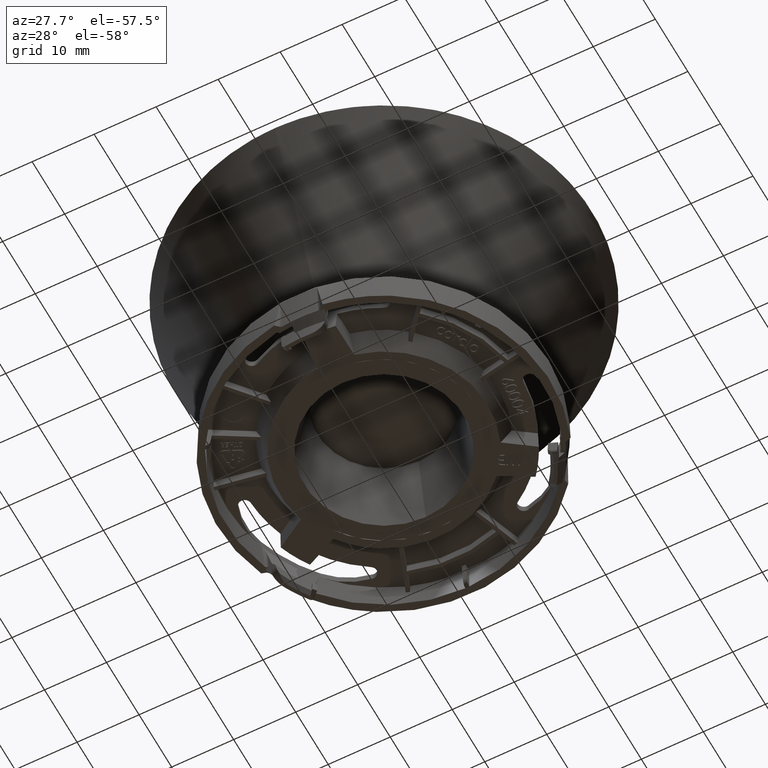
[diagram: clean part render]
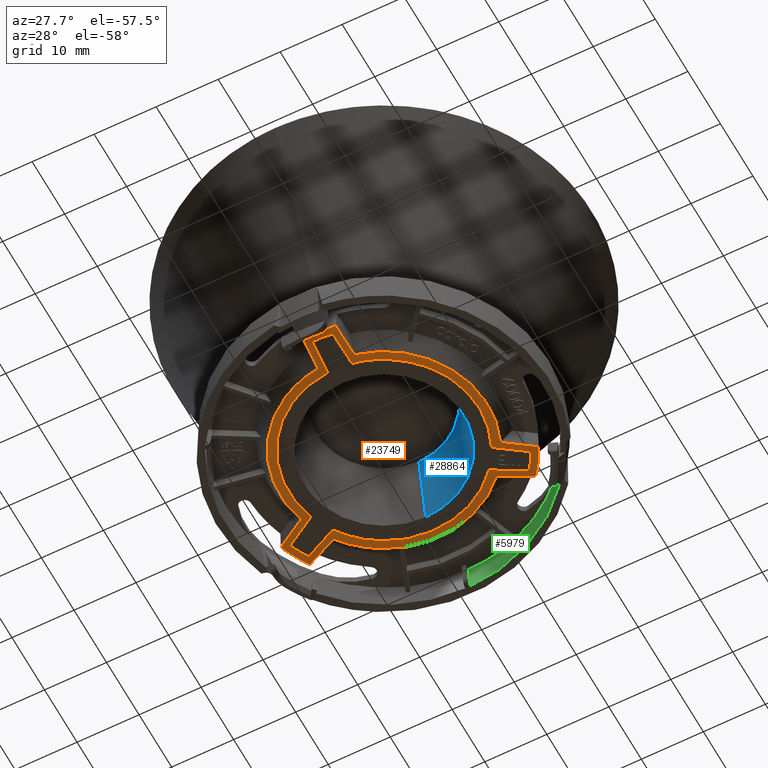
[diagram: same view with three faces highlighted in distinct colors, each labeled with its STEP entity id]
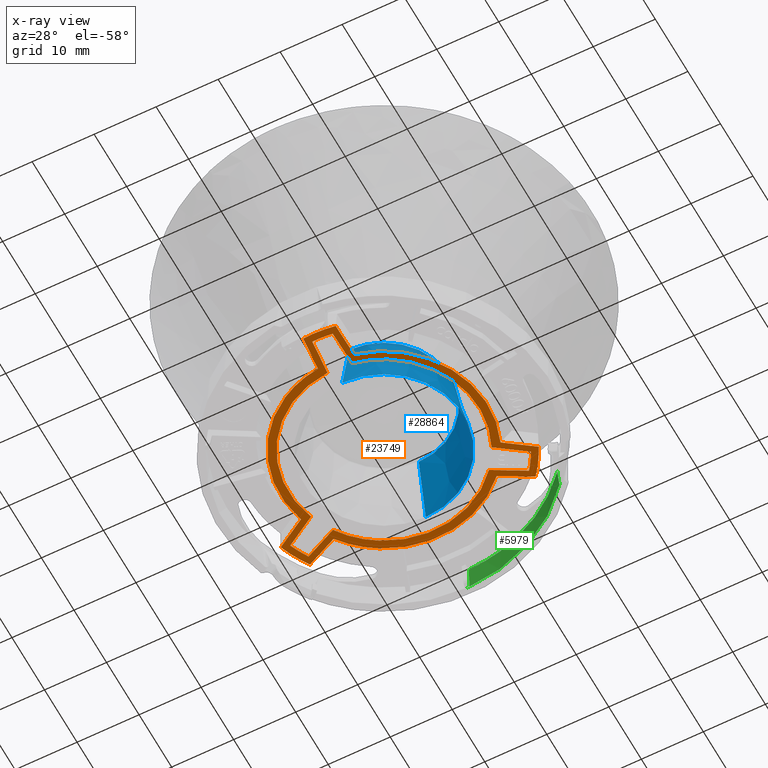
[diagram: x-ray of the same camera — body ghosted, the three highlighted faces saturated]
A machine part, auxiliary view with three faces highlighted in distinct colors.
The next image is the same camera in x-ray (body ghosted, the three faces saturated) — at least one of them is partly hidden behind the body in this view.
Their STEP definitions:

[orange] entity #23749 — the highlighted planar face has unit normal (0, 0, -1).
#101 = AXIS2_PLACEMENT_3D ( 'NONE', #8389, #24213, #10673 ) ;
#285 = DIRECTION ( 'NONE',  ( -0.4999999999999919500, -0.8660254037844432600, 0.0000000000000000000 ) ) ;
#389 = CARTESIAN_POINT ( 'NONE',  ( 0.0000000000000000000, 0.0000000000000000000, 0.0000000000000000000 ) ) ;
#962 = EDGE_LOOP ( 'NONE', ( #8172, #18184, #12116, #10768, #2696, #27487, #12266, #27324, #11338, #5139, #1136, #14303, #15873, #27928 ) ) ;
#1069 = CARTESIAN_POINT ( 'NONE',  ( 0.0000000000000000000, 0.0000000000000000000, 0.0000000000000000000 ) ) ;
#1136 = ORIENTED_EDGE ( 'NONE', *, *, #1169, .T. ) ;
#1169 = EDGE_CURVE ( 'NONE', #5075, #1713, #19078, .T. ) ;
#1219 = PLANE ( 'NONE',  #25530 ) ;
#1319 = DIRECTION ( 'NONE',  ( 0.0000000000000000000, 0.0000000000000000000, 1.000000000000000000 ) ) ;
#1523 = EDGE_CURVE ( 'NONE', #15664, #18676, #6683, .T. ) ;
#1713 = VERTEX_POINT ( 'NONE', #22175 ) ;
#1734 = CIRCLE ( 'NONE', #15433, 15.36204914310654200 ) ;
#1869 = CARTESIAN_POINT ( 'NONE',  ( -7.681024571553148700, -13.30392481211530700, 0.0000000000000000000 ) ) ;
#1922 = AXIS2_PLACEMENT_3D ( 'NONE', #389, #16187, #2660 ) ;
#1944 = DIRECTION ( 'NONE',  ( 0.0000000000000000000, 0.0000000000000000000, -1.000000000000000000 ) ) ;
#1988 = DIRECTION ( 'NONE',  ( 0.4999999999999919500, 0.8660254037844432600, 0.0000000000000000000 ) ) ;
#2397 = CARTESIAN_POINT ( 'NONE',  ( 5.507376653750486100E-016, 1.482765011611677100E-016, 0.0000000000000000000 ) ) ;
#2505 = EDGE_CURVE ( 'NONE', #24407, #9333, #17984, .T. ) ;
#2657 = CIRCLE ( 'NONE', #19850, 21.00000000000008500 ) ;
#2660 = DIRECTION ( 'NONE',  ( 0.5000000000000040000, -0.8660254037844362700, 0.0000000000000000000 ) ) ;
#2696 = ORIENTED_EDGE ( 'NONE', *, *, #4250, .F. ) ;
#2710 = CIRCLE ( 'NONE', #24719, 22.11523853932277100 ) ;
#2775 = ORIENTED_EDGE ( 'NONE', *, *, #23231, .F. ) ;
#2782 = CARTESIAN_POINT ( 'NONE',  ( 1.095929048303754300, -14.95991107998587000, 0.0000000000000000000 ) ) ;
#2815 = EDGE_CURVE ( 'NONE', #28847, #23406, #27834, .T. ) ;
#2953 = CARTESIAN_POINT ( 'NONE',  ( 8.346772599426570200, -14.45703422143041200, 0.0000000000000000000 ) ) ;
#3069 = CIRCLE ( 'NONE', #20568, 22.11523853932277500 ) ;
#3099 = VECTOR ( 'NONE', #9102, 1000.000000000000000 ) ;
#3101 = CARTESIAN_POINT ( 'NONE',  ( -3.653220111792240000, -21.81141349078376700, 0.0000000000000000000 ) ) ;
#3299 = ORIENTED_EDGE ( 'NONE', *, *, #22386, .F. ) ;
#3321 = CARTESIAN_POINT ( 'NONE',  ( -20.14996507813546200, 10.01143882516020700, 0.0000000000000000000 ) ) ;
#3352 = EDGE_CURVE ( 'NONE', #10670, #21821, #15881, .T. ) ;
#3353 = DIRECTION ( 'NONE',  ( 1.000000000000000000, 0.0000000000000000000, 0.0000000000000000000 ) ) ;
#3475 = VECTOR ( 'NONE', #11879, 1000.000000000000200 ) ;
#3611 = DIRECTION ( 'NONE',  ( 0.8161375900801616200, -0.5778576243835033000, 0.0000000000000000000 ) ) ;
#3937 = LINE ( 'NONE', #28623, #15904 ) ;
#4079 = DIRECTION ( 'NONE',  ( 0.0000000000000000000, 0.0000000000000000000, 1.000000000000000000 ) ) ;
#4145 = AXIS2_PLACEMENT_3D ( 'NONE', #1069, #16851, #3353 ) ;
#4250 = EDGE_CURVE ( 'NONE', #6316, #22095, #5975, .T. ) ;
#4431 = CARTESIAN_POINT ( 'NONE',  ( 19.37401939499519400, 8.102306614930936800, 0.0000000000000000000 ) ) ;
#4489 = CARTESIAN_POINT ( 'NONE',  ( -17.06262811956937500, 14.06948816782003100, 0.0000000000000000000 ) ) ;
#4508 = AXIS2_PLACEMENT_3D ( 'NONE', #29020, #15502, #1988 ) ;
#4666 = DIRECTION ( 'NONE',  ( -0.5000000000000040000, 0.8660254037844363800, 0.0000000000000000000 ) ) ;
#4734 = CARTESIAN_POINT ( 'NONE',  ( 1.440801604770245000, -22.06825472000082700, 0.0000000000000000000 ) ) ;
#4830 = EDGE_CURVE ( 'NONE', #6292, #28456, #15478, .T. ) ;
#4983 = AXIS2_PLACEMENT_3D ( 'NONE', #10184, #25975, #12452 ) ;
#5038 = VECTOR ( 'NONE', #25457, 1000.000000000000100 ) ;
#5075 = VERTEX_POINT ( 'NONE', #1869 ) ;
#5139 = ORIENTED_EDGE ( 'NONE', *, *, #7469, .T. ) ;
#5322 = VERTEX_POINT ( 'NONE', #7065 ) ;
#5429 = CARTESIAN_POINT ( 'NONE',  ( -15.33306266456630800, 6.600881807049035800, 0.0000000000000000000 ) ) ;
#5809 = VECTOR ( 'NONE', #3611, 1000.000000000000000 ) ;
#5914 = VERTEX_POINT ( 'NONE', #16524 ) ;
#5975 = LINE ( 'NONE', #17121, #11257 ) ;
#6292 = VERTEX_POINT ( 'NONE', #8930 ) ;
#6316 = VERTEX_POINT ( 'NONE', #24844 ) ;
#6349 = EDGE_CURVE ( 'NONE', #28847, #16327, #27089, .T. ) ;
#6683 = LINE ( 'NONE', #7578, #18705 ) ;
#6825 = CARTESIAN_POINT ( 'NONE',  ( -17.40478764589210300, 14.25915029030150900, 0.0000000000000000000 ) ) ;
#6927 = CARTESIAN_POINT ( 'NONE',  ( -2.670206339716801200, -20.82954627694371300, 0.0000000000000000000 ) ) ;
#7065 = CARTESIAN_POINT ( 'NONE',  ( -2.770037147126327900, -15.11024315088148000, 0.0000000000000000000 ) ) ;
#7157 = VERTEX_POINT ( 'NONE', #5429 ) ;
#7344 = CARTESIAN_POINT ( 'NONE',  ( 15.96254639671545000, 4.885853440173455000, 0.0000000000000000000 ) ) ;
#7469 = EDGE_CURVE ( 'NONE', #5322, #5075, #1734, .T. ) ;
#7554 = CARTESIAN_POINT ( 'NONE',  ( 18.39126840232138000, 12.28189815154491900, 0.0000000000000000000 ) ) ;
#7578 = CARTESIAN_POINT ( 'NONE',  ( 12.40769850947214600, 8.429057936569348500, 0.0000000000000000000 ) ) ;
#7680 = CARTESIAN_POINT ( 'NONE',  ( 21.05118021072745200, 7.943413103665265300, 0.0000000000000000000 ) ) ;
#7874 = CIRCLE ( 'NONE', #4145, 21.00000000000008200 ) ;
#7962 = EDGE_CURVE ( 'NONE', #28075, #22073, #15488, .T. ) ;
#8111 = ORIENTED_EDGE ( 'NONE', *, *, #10152, .T. ) ;
#8161 = CIRCLE ( 'NONE', #27399, 22.11523853932277100 ) ;
#8172 = ORIENTED_EDGE ( 'NONE', *, *, #2815, .T. ) ;
#8191 = DIRECTION ( 'NONE',  ( 0.8161375900801618500, -0.5778576243835030800, 0.0000000000000000000 ) ) ;
#8389 = CARTESIAN_POINT ( 'NONE',  ( 0.0000000000000000000, 0.0000000000000000000, 0.0000000000000000000 ) ) ;
#8445 = CARTESIAN_POINT ( 'NONE',  ( 0.0000000000000000000, 0.0000000000000000000, 0.0000000000000000000 ) ) ;
#8630 = EDGE_CURVE ( 'NONE', #18613, #28075, #22871, .T. ) ;
#8650 = CARTESIAN_POINT ( 'NONE',  ( 7.681024571553146900, 13.30392481211530500, 0.0000000000000000000 ) ) ;
#8821 = EDGE_CURVE ( 'NONE', #5322, #9196, #28178, .T. ) ;
#8848 = CARTESIAN_POINT ( 'NONE',  ( 13.38306266456619800, 9.978380881808558200, 0.0000000000000000000 ) ) ;
#8890 = VERTEX_POINT ( 'NONE', #9900 ) ;
#8930 = CARTESIAN_POINT ( 'NONE',  ( 0.5362421804898369600, -20.99315231983674600, 0.0000000000000000000 ) ) ;
#9102 = DIRECTION ( 'NONE',  ( -0.8746197071393970700, 0.4848096202463347800, 0.0000000000000000000 ) ) ;
#9149 = VECTOR ( 'NONE', #26196, 999.9999999999998900 ) ;
#9173 = EDGE_CURVE ( 'NONE', #18613, #24861, #21099, .T. ) ;
#9196 = VERTEX_POINT ( 'NONE', #6927 ) ;
#9308 = CARTESIAN_POINT ( 'NONE',  ( 1.470585316780064700, 2.653006139672208400, 0.0000000000000000000 ) ) ;
#9333 = VERTEX_POINT ( 'NONE', #3101 ) ;
#9471 = DIRECTION ( 'NONE',  ( 0.0000000000000000000, 0.0000000000000000000, -1.000000000000000000 ) ) ;
#9527 = EDGE_CURVE ( 'NONE', #23406, #18676, #16852, .T. ) ;
#9900 = CARTESIAN_POINT ( 'NONE',  ( -18.44872430473985500, 10.03217680903324400, 0.0000000000000000000 ) ) ;
#10099 = ORIENTED_EDGE ( 'NONE', *, *, #20440, .T. ) ;
#10152 = EDGE_CURVE ( 'NONE', #5914, #25865, #3069, .T. ) ;
#10184 = CARTESIAN_POINT ( 'NONE',  ( 0.0000000000000000000, 0.0000000000000000000, 0.0000000000000000000 ) ) ;
#10670 = VERTEX_POINT ( 'NONE', #2953 ) ;
#10673 = DIRECTION ( 'NONE',  ( 0.5000000000000041100, -0.8660254037844363800, 0.0000000000000000000 ) ) ;
#10702 = EDGE_CURVE ( 'NONE', #27054, #5914, #13968, .T. ) ;
#10722 = DIRECTION ( 'NONE',  ( 0.4999999999999919000, 0.8660254037844432600, 0.0000000000000000000 ) ) ;
#10768 = ORIENTED_EDGE ( 'NONE', *, *, #11584, .F. ) ;
#10997 = CARTESIAN_POINT ( 'NONE',  ( 0.0000000000000000000, 0.0000000000000000000, 0.0000000000000000000 ) ) ;
#11257 = VECTOR ( 'NONE', #17226, 1000.000000000000000 ) ;
#11338 = ORIENTED_EDGE ( 'NONE', *, *, #8821, .F. ) ;
#11469 = ORIENTED_EDGE ( 'NONE', *, *, #7962, .F. ) ;
#11584 = EDGE_CURVE ( 'NONE', #22095, #15664, #2657, .T. ) ;
#11697 = DIRECTION ( 'NONE',  ( 0.0000000000000000000, 0.0000000000000000000, -1.000000000000000000 ) ) ;
#11780 = CARTESIAN_POINT ( 'NONE',  ( -3.032863371742252400, -0.05293882707215394300, 0.0000000000000000000 ) ) ;
#11879 = DIRECTION ( 'NONE',  ( 0.01745240643727692700, -0.9998476951563912700, 0.0000000000000000000 ) ) ;
#11949 = VECTOR ( 'NONE', #15050, 1000.000000000000100 ) ;
#12116 = ORIENTED_EDGE ( 'NONE', *, *, #1523, .F. ) ;
#12164 = EDGE_CURVE ( 'NONE', #16327, #8890, #27700, .T. ) ;
#12266 = ORIENTED_EDGE ( 'NONE', *, *, #4830, .F. ) ;
#12354 = CIRCLE ( 'NONE', #1922, 15.36204914310654600 ) ;
#12452 = DIRECTION ( 'NONE',  ( 0.4999999999999919500, 0.8660254037844432600, 0.0000000000000000000 ) ) ;
#12562 = ORIENTED_EDGE ( 'NONE', *, *, #10702, .T. ) ;
#12696 = CARTESIAN_POINT ( 'NONE',  ( 0.0000000000000000000, 0.0000000000000000000, 0.0000000000000000000 ) ) ;
#12726 = DIRECTION ( 'NONE',  ( 0.0000000000000000000, 0.0000000000000000000, -1.000000000000000000 ) ) ;
#12780 = CARTESIAN_POINT ( 'NONE',  ( -3.646392564835516200, -22.20256339396683700, 0.0000000000000000000 ) ) ;
#13262 = DIRECTION ( 'NONE',  ( 0.4999999999999919000, 0.8660254037844432600, 0.0000000000000000000 ) ) ;
#13427 = ORIENTED_EDGE ( 'NONE', *, *, #9173, .T. ) ;
#13490 = CARTESIAN_POINT ( 'NONE',  ( -1.469576158976827500E-016, -5.510910596163085600E-016, 0.0000000000000000000 ) ) ;
#13803 = DIRECTION ( 'NONE',  ( 0.0000000000000000000, 0.0000000000000000000, 1.000000000000000000 ) ) ;
#13968 = LINE ( 'NONE', #7680, #21408 ) ;
#14303 = ORIENTED_EDGE ( 'NONE', *, *, #15548, .F. ) ;
#14406 = CARTESIAN_POINT ( 'NONE',  ( 1.950000000000003300, -16.57926268885767500, 0.0000000000000000000 ) ) ;
#14558 = CIRCLE ( 'NONE', #16628, 16.69354519885300500 ) ;
#14608 = ORIENTED_EDGE ( 'NONE', *, *, #8630, .F. ) ;
#14687 = ORIENTED_EDGE ( 'NONE', *, *, #3352, .F. ) ;
#14900 = ORIENTED_EDGE ( 'NONE', *, *, #16538, .T. ) ;
#14968 = DIRECTION ( 'NONE',  ( -0.5000000000000041100, 0.8660254037844363800, 0.0000000000000000000 ) ) ;
#15050 = DIRECTION ( 'NONE',  ( 0.01745240643727677100, -0.9998476951563912700, -0.0000000000000000000 ) ) ;
#15090 = VECTOR ( 'NONE', #18140, 1000.000000000000200 ) ;
#15184 = LINE ( 'NONE', #17104, #9149 ) ;
#15243 = VERTEX_POINT ( 'NONE', #4734 ) ;
#15433 = AXIS2_PLACEMENT_3D ( 'NONE', #25207, #11697, #27468 ) ;
#15461 = CARTESIAN_POINT ( 'NONE',  ( 0.0000000000000000000, 0.0000000000000000000, 0.0000000000000000000 ) ) ;
#15478 = LINE ( 'NONE', #2782, #26781 ) ;
#15488 = CIRCLE ( 'NONE', #25456, 16.69354519885300500 ) ;
#15502 = DIRECTION ( 'NONE',  ( 0.0000000000000000000, 0.0000000000000000000, -1.000000000000000000 ) ) ;
#15548 = EDGE_CURVE ( 'NONE', #8890, #1713, #3937, .T. ) ;
#15664 = VERTEX_POINT ( 'NONE', #16060 ) ;
#15762 = CARTESIAN_POINT ( 'NONE',  ( 1.062033491918013400, -15.32529408322284000, 0.0000000000000000000 ) ) ;
#15764 = DIRECTION ( 'NONE',  ( 1.000000000000000000, 0.0000000000000000000, 0.0000000000000000000 ) ) ;
#15873 = ORIENTED_EDGE ( 'NONE', *, *, #12164, .F. ) ;
#15881 = CIRCLE ( 'NONE', #101, 16.69354519885300500 ) ;
#15904 = VECTOR ( 'NONE', #8191, 1000.000000000000200 ) ;
#16060 = CARTESIAN_POINT ( 'NONE',  ( 17.91248212424987300, 10.96097551080341700, 0.0000000000000000000 ) ) ;
#16121 = ORIENTED_EDGE ( 'NONE', *, *, #24137, .T. ) ;
#16187 = DIRECTION ( 'NONE',  ( 0.0000000000000000000, 0.0000000000000000000, -1.000000000000000000 ) ) ;
#16289 = EDGE_LOOP ( 'NONE', ( #16121, #11469, #14608, #13427, #22206, #10099, #3299, #16489, #24091, #14900, #14687, #2775, #12562, #8111 ) ) ;
#16327 = VERTEX_POINT ( 'NONE', #23329 ) ;
#16489 = ORIENTED_EDGE ( 'NONE', *, *, #2505, .T. ) ;
#16524 = CARTESIAN_POINT ( 'NONE',  ( 20.71584823136144800, 7.741925322963674600, 0.0000000000000000000 ) ) ;
#16538 = EDGE_CURVE ( 'NONE', #15243, #21821, #15184, .T. ) ;
#16628 = AXIS2_PLACEMENT_3D ( 'NONE', #26257, #12726, #28515 ) ;
#16851 = DIRECTION ( 'NONE',  ( 0.0000000000000000000, 0.0000000000000000000, 1.000000000000000000 ) ) ;
#16852 = CIRCLE ( 'NONE', #4508, 15.36204914310654200 ) ;
#17100 = DIRECTION ( 'NONE',  ( -0.4999999999999919500, -0.8660254037844432600, 0.0000000000000000000 ) ) ;
#17104 = CARTESIAN_POINT ( 'NONE',  ( 1.404822188044947200, -22.45610105561471700, 0.0000000000000000000 ) ) ;
#17121 = CARTESIAN_POINT ( 'NONE',  ( 1.562278054962175100, -2.600067312600034000, 0.0000000000000000000 ) ) ;
#17226 = DIRECTION ( 'NONE',  ( 0.8571673007021132200, 0.5150380749100524900, 0.0000000000000000000 ) ) ;
#17337 = CARTESIAN_POINT ( 'NONE',  ( -11.70083585246011100, 9.954044114278604000, 0.0000000000000000000 ) ) ;
#17599 = CARTESIAN_POINT ( 'NONE',  ( 0.0000000000000000000, 0.0000000000000000000, 0.0000000000000000000 ) ) ;
#17746 = DIRECTION ( 'NONE',  ( 0.4999999999999919000, 0.8660254037844432600, 0.0000000000000000000 ) ) ;
#17984 = LINE ( 'NONE', #12780, #11949 ) ;
#18140 = DIRECTION ( 'NONE',  ( -0.8746197071393970700, 0.4848096202463346200, 0.0000000000000000000 ) ) ;
#18184 = ORIENTED_EDGE ( 'NONE', *, *, #9527, .T. ) ;
#18187 = DIRECTION ( 'NONE',  ( 0.0000000000000000000, 0.0000000000000000000, 1.000000000000000000 ) ) ;
#18613 = VERTEX_POINT ( 'NONE', #24744 ) ;
#18676 = VERTEX_POINT ( 'NONE', #27285 ) ;
#18705 = VECTOR ( 'NONE', #28099, 1000.000000000000100 ) ;
#19078 = CIRCLE ( 'NONE', #4983, 15.36204914310654200 ) ;
#19394 = AXIS2_PLACEMENT_3D ( 'NONE', #23008, #9471, #25276 ) ;
#19651 = VERTEX_POINT ( 'NONE', #21710 ) ;
#19850 = AXIS2_PLACEMENT_3D ( 'NONE', #12696, #28479, #14968 ) ;
#19860 = DIRECTION ( 'NONE',  ( -0.4999999999999919500, -0.8660254037844432600, 0.0000000000000000000 ) ) ;
#19917 = CARTESIAN_POINT ( 'NONE',  ( -3.749999999999996400, -16.26689740873004200, 0.0000000000000000000 ) ) ;
#19919 = EDGE_CURVE ( 'NONE', #9333, #15243, #2710, .T. ) ;
#20137 = CARTESIAN_POINT ( 'NONE',  ( 8.346772599426366000, 14.45703422143052700, 0.0000000000000000000 ) ) ;
#20440 = EDGE_CURVE ( 'NONE', #19651, #7157, #28395, .T. ) ;
#20568 = AXIS2_PLACEMENT_3D ( 'NONE', #2397, #18187, #4666 ) ;
#20580 = FACE_BOUND ( 'NONE', #962, .T. ) ;
#20766 = AXIS2_PLACEMENT_3D ( 'NONE', #8445, #24262, #10722 ) ;
#20819 = DIRECTION ( 'NONE',  ( 0.09237058744656816100, 0.9957246981845815400, -0.0000000000000000000 ) ) ;
#21099 = LINE ( 'NONE', #6825, #3099 ) ;
#21408 = VECTOR ( 'NONE', #23467, 1000.000000000000000 ) ;
#21710 = CARTESIAN_POINT ( 'NONE',  ( -19.83207000709176900, 9.786356568455810000, 0.0000000000000000000 ) ) ;
#21821 = VERTEX_POINT ( 'NONE', #14406 ) ;
#22073 = VERTEX_POINT ( 'NONE', #8848 ) ;
#22095 = VERTEX_POINT ( 'NONE', #4431 ) ;
#22175 = CARTESIAN_POINT ( 'NONE',  ( -13.80311074249739700, 6.742899057940396900, 0.0000000000000000000 ) ) ;
#22206 = ORIENTED_EDGE ( 'NONE', *, *, #26611, .T. ) ;
#22248 = EDGE_CURVE ( 'NONE', #9196, #6292, #7874, .T. ) ;
#22386 = EDGE_CURVE ( 'NONE', #24407, #7157, #29052, .T. ) ;
#22871 = CIRCLE ( 'NONE', #25851, 16.69354519885300500 ) ;
#23008 = CARTESIAN_POINT ( 'NONE',  ( 0.0000000000000000000, 0.0000000000000000000, 0.0000000000000000000 ) ) ;
#23184 = CARTESIAN_POINT ( 'NONE',  ( 18.74514289009036400, 12.44466223045441000, 0.0000000000000000000 ) ) ;
#23231 = EDGE_CURVE ( 'NONE', #27054, #10670, #14558, .T. ) ;
#23329 = CARTESIAN_POINT ( 'NONE',  ( -16.70381305527854800, 12.72723966201271000, 0.0000000000000000000 ) ) ;
#23406 = VERTEX_POINT ( 'NONE', #8650 ) ;
#23467 = DIRECTION ( 'NONE',  ( 0.8571673007021133300, 0.5150380749100523800, 0.0000000000000000000 ) ) ;
#23749 = ADVANCED_FACE ( 'NONE', ( #26596, #20580 ), #1219, .T. ) ;
#23780 = LINE ( 'NONE', #23184, #5038 ) ;
#24091 = ORIENTED_EDGE ( 'NONE', *, *, #19919, .T. ) ;
#24137 = EDGE_CURVE ( 'NONE', #25865, #22073, #23780, .T. ) ;
#24213 = DIRECTION ( 'NONE',  ( 0.0000000000000000000, 0.0000000000000000000, -1.000000000000000000 ) ) ;
#24262 = DIRECTION ( 'NONE',  ( 0.0000000000000000000, 0.0000000000000000000, -1.000000000000000000 ) ) ;
#24407 = VERTEX_POINT ( 'NONE', #19917 ) ;
#24719 = AXIS2_PLACEMENT_3D ( 'NONE', #13490, #29294, #15764 ) ;
#24744 = CARTESIAN_POINT ( 'NONE',  ( -12.21254639671557900, 11.38104396855654900, 0.0000000000000000000 ) ) ;
#24844 = CARTESIAN_POINT ( 'NONE',  ( 14.47087299958632700, 5.156199036602835400, 0.0000000000000000000 ) ) ;
#24861 = VERTEX_POINT ( 'NONE', #4489 ) ;
#25207 = CARTESIAN_POINT ( 'NONE',  ( 0.0000000000000000000, 0.0000000000000000000, 0.0000000000000000000 ) ) ;
#25276 = DIRECTION ( 'NONE',  ( 0.4999999999999919500, 0.8660254037844432600, 0.0000000000000000000 ) ) ;
#25456 = AXIS2_PLACEMENT_3D ( 'NONE', #10997, #26801, #13262 ) ;
#25457 = DIRECTION ( 'NONE',  ( -0.9085081775267226400, -0.4178670738010748500, 0.0000000000000000000 ) ) ;
#25530 = AXIS2_PLACEMENT_3D ( 'NONE', #28345, #1319, #17100 ) ;
#25851 = AXIS2_PLACEMENT_3D ( 'NONE', #15461, #1944, #17746 ) ;
#25865 = VERTEX_POINT ( 'NONE', #7554 ) ;
#25975 = DIRECTION ( 'NONE',  ( 0.0000000000000000000, 0.0000000000000000000, -1.000000000000000000 ) ) ;
#26196 = DIRECTION ( 'NONE',  ( 0.09237058744656831400, 0.9957246981845815400, 0.0000000000000000000 ) ) ;
#26257 = CARTESIAN_POINT ( 'NONE',  ( 0.0000000000000000000, 0.0000000000000000000, 0.0000000000000000000 ) ) ;
#26596 = FACE_OUTER_BOUND ( 'NONE', #16289, .T. ) ;
#26611 = EDGE_CURVE ( 'NONE', #24861, #19651, #8161, .T. ) ;
#26781 = VECTOR ( 'NONE', #20819, 1000.000000000000100 ) ;
#26801 = DIRECTION ( 'NONE',  ( 0.0000000000000000000, 0.0000000000000000000, -1.000000000000000000 ) ) ;
#26849 = AXIS2_PLACEMENT_3D ( 'NONE', #17599, #4079, #19860 ) ;
#27054 = VERTEX_POINT ( 'NONE', #7344 ) ;
#27089 = LINE ( 'NONE', #9308, #15090 ) ;
#27285 = CARTESIAN_POINT ( 'NONE',  ( 12.74107725057928400, 8.582395025282377100, 0.0000000000000000000 ) ) ;
#27314 = CARTESIAN_POINT ( 'NONE',  ( -4.037800494773701000E-016, 4.028145584551396700E-016, 0.0000000000000000000 ) ) ;
#27324 = ORIENTED_EDGE ( 'NONE', *, *, #22248, .F. ) ;
#27399 = AXIS2_PLACEMENT_3D ( 'NONE', #27314, #13803, #285 ) ;
#27468 = DIRECTION ( 'NONE',  ( 0.4999999999999919500, 0.8660254037844432600, 0.0000000000000000000 ) ) ;
#27487 = ORIENTED_EDGE ( 'NONE', *, *, #28092, .T. ) ;
#27700 = CIRCLE ( 'NONE', #26849, 21.00000000000008200 ) ;
#27834 = CIRCLE ( 'NONE', #19394, 15.36204914310654200 ) ;
#27928 = ORIENTED_EDGE ( 'NONE', *, *, #6349, .F. ) ;
#28075 = VERTEX_POINT ( 'NONE', #20137 ) ;
#28092 = EDGE_CURVE ( 'NONE', #6316, #28456, #12354, .T. ) ;
#28099 = DIRECTION ( 'NONE',  ( -0.9085081775267226400, -0.4178670738010749600, 0.0000000000000000000 ) ) ;
#28178 = LINE ( 'NONE', #11780, #3475 ) ;
#28345 = CARTESIAN_POINT ( 'NONE',  ( -2.037135530415124400E-031, -3.528422240582845400E-031, 0.0000000000000000000 ) ) ;
#28395 = LINE ( 'NONE', #3321, #5809 ) ;
#28456 = VERTEX_POINT ( 'NONE', #15762 ) ;
#28479 = DIRECTION ( 'NONE',  ( 0.0000000000000000000, 0.0000000000000000000, 1.000000000000000000 ) ) ;
#28515 = DIRECTION ( 'NONE',  ( 0.5000000000000041100, -0.8660254037844363800, 0.0000000000000000000 ) ) ;
#28623 = CARTESIAN_POINT ( 'NONE',  ( -13.50362755777599600, 6.530853143416454300, 0.0000000000000000000 ) ) ;
#28847 = VERTEX_POINT ( 'NONE', #17337 ) ;
#29020 = CARTESIAN_POINT ( 'NONE',  ( 0.0000000000000000000, 0.0000000000000000000, 0.0000000000000000000 ) ) ;
#29052 = CIRCLE ( 'NONE', #20766, 16.69354519885300500 ) ;
#29294 = DIRECTION ( 'NONE',  ( 0.0000000000000000000, 0.0000000000000000000, 1.000000000000000000 ) ) ;

[blue] entity #28864 — the highlighted conical surface has half-angle 10.286 deg.
#4597 = CARTESIAN_POINT ( 'NONE',  ( 2.710505431213754600E-017, 0.0000000000000000000, -2.472722184133789000E-015 ) ) ;
#4729 = AXIS2_PLACEMENT_3D ( 'NONE', #11847, #27627, #14121 ) ;
#4878 = CARTESIAN_POINT ( 'NONE',  ( -10.70046003830428200, 0.0000000000000000000, 11.72145861464795400 ) ) ;
#6099 = EDGE_CURVE ( 'NONE', #11872, #13009, #29213, .T. ) ;
#6169 = CARTESIAN_POINT ( 'NONE',  ( 2.710505431213754600E-017, 0.0000000000000000000, -2.472722184133789000E-015 ) ) ;
#6832 = DIRECTION ( 'NONE',  ( -1.000000000000000000, 0.0000000000000000000, 7.021038414894075600E-017 ) ) ;
#7007 = FACE_OUTER_BOUND ( 'NONE', #10225, .T. ) ;
#7090 = CIRCLE ( 'NONE', #4729, 10.70046003830428200 ) ;
#9852 = AXIS2_PLACEMENT_3D ( 'NONE', #6169, #15164, #21965 ) ;
#10016 = CARTESIAN_POINT ( 'NONE',  ( 12.82757593405640300, 1.570924980846179300E-015, -3.373351218163596600E-015 ) ) ;
#10225 = EDGE_LOOP ( 'NONE', ( #23154, #11101, #23835, #21106 ) ) ;
#10545 = CARTESIAN_POINT ( 'NONE',  ( -12.82757593405640300, 0.0000000000000000000, -1.572093150103981400E-015 ) ) ;
#11101 = ORIENTED_EDGE ( 'NONE', *, *, #28695, .T. ) ;
#11847 = CARTESIAN_POINT ( 'NONE',  ( 8.500731664324815200E-016, 0.0000000000000000000, 11.72145861464795400 ) ) ;
#11872 = VERTEX_POINT ( 'NONE', #4878 ) ;
#11903 = VECTOR ( 'NONE', #26331, 1000.000000000000100 ) ;
#12297 = DIRECTION ( 'NONE',  ( 0.1785556571717019600, 2.186676140249770200E-017, -0.9839298131940008600 ) ) ;
#12328 = CONICAL_SURFACE ( 'NONE', #9852, 12.82757593405640300, 0.1795183223643183600 ) ;
#13009 = VERTEX_POINT ( 'NONE', #15336 ) ;
#13312 = VERTEX_POINT ( 'NONE', #23719 ) ;
#13709 = CARTESIAN_POINT ( 'NONE',  ( 10.70046003830428200, 1.440676697188764800E-015, 11.72145861464795400 ) ) ;
#14121 = DIRECTION ( 'NONE',  ( -1.000000000000000000, 0.0000000000000000000, 0.0000000000000000000 ) ) ;
#15164 = DIRECTION ( 'NONE',  ( -7.021038414894075600E-017, -0.0000000000000000000, -1.000000000000000000 ) ) ;
#15336 = CARTESIAN_POINT ( 'NONE',  ( -12.82757593405640300, 0.0000000000000000000, -1.572093150103981400E-015 ) ) ;
#20378 = DIRECTION ( 'NONE',  ( -7.021038414894075600E-017, -0.0000000000000000000, -1.000000000000000000 ) ) ;
#21106 = ORIENTED_EDGE ( 'NONE', *, *, #6099, .F. ) ;
#21965 = DIRECTION ( 'NONE',  ( -1.000000000000000000, 0.0000000000000000000, 7.021038414894075600E-017 ) ) ;
#22512 = EDGE_CURVE ( 'NONE', #13312, #13009, #28342, .T. ) ;
#23154 = ORIENTED_EDGE ( 'NONE', *, *, #26200, .F. ) ;
#23719 = CARTESIAN_POINT ( 'NONE',  ( 12.82757593405640300, 1.570924980846179300E-015, -3.373351218163596600E-015 ) ) ;
#23835 = ORIENTED_EDGE ( 'NONE', *, *, #22512, .T. ) ;
#25248 = VERTEX_POINT ( 'NONE', #13709 ) ;
#26200 = EDGE_CURVE ( 'NONE', #25248, #11872, #7090, .T. ) ;
#26331 = DIRECTION ( 'NONE',  ( -0.1785556571717020800, 0.0000000000000000000, -0.9839298131940008600 ) ) ;
#26832 = AXIS2_PLACEMENT_3D ( 'NONE', #4597, #20378, #6832 ) ;
#27627 = DIRECTION ( 'NONE',  ( -7.021038414894075600E-017, -0.0000000000000000000, -1.000000000000000000 ) ) ;
#27861 = VECTOR ( 'NONE', #12297, 1000.000000000000100 ) ;
#28342 = CIRCLE ( 'NONE', #26832, 12.82757593405640300 ) ;
#28588 = LINE ( 'NONE', #10016, #27861 ) ;
#28695 = EDGE_CURVE ( 'NONE', #25248, #13312, #28588, .T. ) ;
#28864 = ADVANCED_FACE ( 'NONE', ( #7007 ), #12328, .F. ) ;
#29213 = LINE ( 'NONE', #10545, #11903 ) ;

[green] entity #5979 — the highlighted conical surface has half-angle 2.5 deg.
#896 = ORIENTED_EDGE ( 'NONE', *, *, #18887, .F. ) ;
#1154 = AXIS2_PLACEMENT_3D ( 'NONE', #23071, #9541, #25345 ) ;
#1231 = CARTESIAN_POINT ( 'NONE',  ( -0.1110446604892741400, 25.58899196380084400, 1.000000000000621300 ) ) ;
#1519 = CIRCLE ( 'NONE', #2665, 25.40124990929422600 ) ;
#1708 = CARTESIAN_POINT ( 'NONE',  ( -19.52414268249012600, 16.40909793258017800, -0.9608384698768592800 ) ) ;
#2166 = CARTESIAN_POINT ( 'NONE',  ( -9.016400617561027200, 23.74716860718483600, -3.299999999999997200 ) ) ;
#2546 = CARTESIAN_POINT ( 'NONE',  ( -8.999269633028253800, 23.79879965243269900, -2.333334094887306700 ) ) ;
#2665 = AXIS2_PLACEMENT_3D ( 'NONE', #22761, #9230, #25040 ) ;
#2915 = CARTESIAN_POINT ( 'NONE',  ( -0.3331339814676632600, 25.58677118794027200, 0.9988043510241505500 ) ) ;
#3571 = CARTESIAN_POINT ( 'NONE',  ( -8.403733047486133100, 24.01555724298656700, -2.333334094887306700 ) ) ;
#3688 = VERTEX_POINT ( 'NONE', #2166 ) ;
#4001 = CARTESIAN_POINT ( 'NONE',  ( -19.22699653847122300, 16.59958135207136500, -3.299999999999997200 ) ) ;
#4351 = ORIENTED_EDGE ( 'NONE', *, *, #26643, .F. ) ;
#4909 = CARTESIAN_POINT ( 'NONE',  ( -9.007838109925772900, 23.77299229087861600, -2.816667430756294400 ) ) ;
#5222 = VERTEX_POINT ( 'NONE', #24856 ) ;
#5390 = CARTESIAN_POINT ( 'NONE',  ( -7.954656655444734000E-014, 25.58899196380082200, 1.000000000000001300 ) ) ;
#5610 = DIRECTION ( 'NONE',  ( 0.0000000000000000000, 0.0000000000000000000, -1.000000000000000000 ) ) ;
#5679 = B_SPLINE_CURVE_WITH_KNOTS ( 'NONE', 3,
 ( #25294, #14139, #16410, #2915 ),
 .UNSPECIFIED., .F., .F.,
 ( 4, 4 ),
 ( 2.001927590287267800E-007, 0.004303147361587856200 ),
 .UNSPECIFIED. ) ;
#5771 = CARTESIAN_POINT ( 'NONE',  ( -0.3331339814676632600, 25.58677118794027200, 0.9988043510241505500 ) ) ;
#5963 = CARTESIAN_POINT ( 'NONE',  ( -19.73679652859662100, 16.26860988601687200, 0.7362832739452395100 ) ) ;
#5979 = ADVANCED_FACE ( 'NONE', ( #14011 ), #23944, .F. ) ;
#6971 = VERTEX_POINT ( 'NONE', #8863 ) ;
#6987 = ORIENTED_EDGE ( 'NONE', *, *, #16272, .T. ) ;
#7450 = VERTEX_POINT ( 'NONE', #11499 ) ;
#7640 = AXIS2_PLACEMENT_3D ( 'NONE', #19126, #5610, #21389 ) ;
#7886 = B_SPLINE_CURVE_WITH_KNOTS ( 'NONE', 3,
 ( #11509, #2546, #4909, #20683 ),
 .UNSPECIFIED., .F., .F.,
 ( 4, 4 ),
 ( 2.003159604073590200E-007, 0.001452493318427247700 ),
 .UNSPECIFIED. ) ;
#8086 = CARTESIAN_POINT ( 'NONE',  ( -8.357422155819154600, 23.98701715228141800, -3.299999999999997200 ) ) ;
#8281 = VERTEX_POINT ( 'NONE', #12369 ) ;
#8863 = CARTESIAN_POINT ( 'NONE',  ( -19.05794581543211000, 16.79339746002795400, -3.300000000000000700 ) ) ;
#8977 = CARTESIAN_POINT ( 'NONE',  ( 0.0000000000000000000, -0.0000000000000000000, -3.299999999999997200 ) ) ;
#9230 = DIRECTION ( 'NONE',  ( 0.0000000000000000000, 0.0000000000000000000, -1.000000000000000000 ) ) ;
#9541 = DIRECTION ( 'NONE',  ( 0.0000000000000000000, 0.0000000000000000000, 1.000000000000000000 ) ) ;
#10038 = DIRECTION ( 'NONE',  ( 0.0000000000000000000, 0.0000000000000000000, 1.000000000000000000 ) ) ;
#10109 = EDGE_CURVE ( 'NONE', #7450, #6971, #21066, .T. ) ;
#10233 = CIRCLE ( 'NONE', #7640, 25.40124990929422600 ) ;
#11270 = DIRECTION ( 'NONE',  ( 0.4999999999999919000, 0.8660254037844432600, 0.0000000000000000000 ) ) ;
#11499 = CARTESIAN_POINT ( 'NONE',  ( -19.22699653847122300, 16.59958135207136500, -3.299999999999997200 ) ) ;
#11509 = CARTESIAN_POINT ( 'NONE',  ( -8.990695231715982100, 23.82459081428793400, -1.850000000000000100 ) ) ;
#11680 = ORIENTED_EDGE ( 'NONE', *, *, #15940, .T. ) ;
#12332 = ORIENTED_EDGE ( 'NONE', *, *, #24507, .F. ) ;
#12369 = CARTESIAN_POINT ( 'NONE',  ( -8.426879659244439900, 24.02980290028334300, -1.850000000000000100 ) ) ;
#12507 = CIRCLE ( 'NONE', #23662, 25.58899196380081200 ) ;
#13062 = EDGE_CURVE ( 'NONE', #26162, #21580, #12507, .T. ) ;
#13145 = CARTESIAN_POINT ( 'NONE',  ( -7.954656655444734000E-014, 25.58899196380082200, 1.000000000000001300 ) ) ;
#13252 = CARTESIAN_POINT ( 'NONE',  ( 0.0000000000000000000, 0.0000000000000000000, 1.000000000000000900 ) ) ;
#13793 = VERTEX_POINT ( 'NONE', #25563 ) ;
#14011 = FACE_OUTER_BOUND ( 'NONE', #18511, .T. ) ;
#14139 = CARTESIAN_POINT ( 'NONE',  ( -0.3449206114996832300, 25.46147791298107100, -1.867065332501135700 ) ) ;
#14265 = ORIENTED_EDGE ( 'NONE', *, *, #24280, .T. ) ;
#14584 = DIRECTION ( 'NONE',  ( -0.4999999999999920100, -0.8660254037844433700, 0.0000000000000000000 ) ) ;
#14627 = B_SPLINE_CURVE_WITH_KNOTS ( 'NONE', 3,
 ( #5390, #1231, #19288, #5771 ),
 .UNSPECIFIED., .F., .F.,
 ( 4, 4 ),
 ( 0.0003334418633832188900, 0.0006665758448508026900 ),
 .UNSPECIFIED. ) ;
#14652 = AXIS2_PLACEMENT_3D ( 'NONE', #25744, #10038, #14584 ) ;
#15237 = CARTESIAN_POINT ( 'NONE',  ( -19.67075502744687300, 16.31230569850254100, 0.2088615357373774800 ) ) ;
#15529 = DIRECTION ( 'NONE',  ( 0.4999999999999920100, 0.8660254037844433700, 0.0000000000000000000 ) ) ;
#15862 = CARTESIAN_POINT ( 'NONE',  ( -8.357422155819154600, 23.98701715228141800, -3.299999999999997200 ) ) ;
#15940 = EDGE_CURVE ( 'NONE', #6971, #3688, #10233, .T. ) ;
#16034 = AXIS2_PLACEMENT_3D ( 'NONE', #8977, #24803, #11270 ) ;
#16272 = EDGE_CURVE ( 'NONE', #13793, #5222, #5679, .T. ) ;
#16410 = CARTESIAN_POINT ( 'NONE',  ( -0.3390273652865379800, 25.52412586612921100, -0.4341305479729010200 ) ) ;
#16743 = CARTESIAN_POINT ( 'NONE',  ( -8.990695231715982100, 23.82459081428793400, -1.850000000000000100 ) ) ;
#16794 = ORIENTED_EDGE ( 'NONE', *, *, #20489, .T. ) ;
#17502 = CARTESIAN_POINT ( 'NONE',  ( -19.37623162764350200, 16.50486360083166200, -2.130461862457989400 ) ) ;
#17642 = ORIENTED_EDGE ( 'NONE', *, *, #10109, .T. ) ;
#18060 = CIRCLE ( 'NONE', #1154, 25.46455827651156100 ) ;
#18511 = EDGE_LOOP ( 'NONE', ( #896, #22868, #16794, #17642, #11680, #12332, #4351, #14265, #21293, #6987 ) ) ;
#18887 = EDGE_CURVE ( 'NONE', #21580, #5222, #14627, .T. ) ;
#19126 = CARTESIAN_POINT ( 'NONE',  ( 0.0000000000000000000, -0.0000000000000000000, -3.299999999999997200 ) ) ;
#19288 = CARTESIAN_POINT ( 'NONE',  ( -0.2220893209784687000, 25.58825184277252900, 0.9996031308191163400 ) ) ;
#19343 = CARTESIAN_POINT ( 'NONE',  ( -8.426879659244439900, 24.02980290028334300, -1.850000000000000100 ) ) ;
#19770 = B_SPLINE_CURVE_WITH_KNOTS ( 'NONE', 3,
 ( #21850, #5963, #28746, #15237, #1708, #17502, #4001 ),
 .UNSPECIFIED., .F., .F.,
 ( 4, 3, 4 ),
 ( 1.517883041479706200E-018, 0.0008000000396905232600, 0.004348461956188011200 ),
 .UNSPECIFIED. ) ;
#20489 = EDGE_CURVE ( 'NONE', #26162, #7450, #19770, .T. ) ;
#20637 = CARTESIAN_POINT ( 'NONE',  ( -19.76971853986087200, 16.24668392559367500, 1.000000000000000900 ) ) ;
#20683 = CARTESIAN_POINT ( 'NONE',  ( -9.016400617561027200, 23.74716860718483600, -3.299999999999997200 ) ) ;
#21066 = CIRCLE ( 'NONE', #16034, 25.40124990929422600 ) ;
#21086 = VERTEX_POINT ( 'NONE', #16743 ) ;
#21293 = ORIENTED_EDGE ( 'NONE', *, *, #24473, .T. ) ;
#21389 = DIRECTION ( 'NONE',  ( 0.4999999999999919000, 0.8660254037844432600, 0.0000000000000000000 ) ) ;
#21580 = VERTEX_POINT ( 'NONE', #13145 ) ;
#21607 = CARTESIAN_POINT ( 'NONE',  ( -8.380580561127128900, 24.00129536786011300, -2.816667430756294400 ) ) ;
#21850 = CARTESIAN_POINT ( 'NONE',  ( -19.76971853986087200, 16.24668392559367500, 1.000000000000000900 ) ) ;
#22761 = CARTESIAN_POINT ( 'NONE',  ( 0.0000000000000000000, -0.0000000000000000000, -3.299999999999997200 ) ) ;
#22868 = ORIENTED_EDGE ( 'NONE', *, *, #13062, .F. ) ;
#23071 = CARTESIAN_POINT ( 'NONE',  ( 0.0000000000000000000, -0.0000000000000000000, -1.850000000000000100 ) ) ;
#23662 = AXIS2_PLACEMENT_3D ( 'NONE', #13252, #29051, #15529 ) ;
#23944 = CONICAL_SURFACE ( 'NONE', #14652, 25.58899196380081200, 0.04363323129985582200 ) ;
#24280 = EDGE_CURVE ( 'NONE', #8281, #28502, #25850, .T. ) ;
#24473 = EDGE_CURVE ( 'NONE', #28502, #13793, #1519, .T. ) ;
#24507 = EDGE_CURVE ( 'NONE', #21086, #3688, #7886, .T. ) ;
#24803 = DIRECTION ( 'NONE',  ( 0.0000000000000000000, 0.0000000000000000000, -1.000000000000000000 ) ) ;
#24856 = CARTESIAN_POINT ( 'NONE',  ( -0.3331339814676632600, 25.58677118794027200, 0.9988043510241505500 ) ) ;
#25040 = DIRECTION ( 'NONE',  ( 0.4999999999999919000, 0.8660254037844432600, 0.0000000000000000000 ) ) ;
#25294 = CARTESIAN_POINT ( 'NONE',  ( -0.3508137170469914400, 25.39882726998141400, -3.299999999999997200 ) ) ;
#25345 = DIRECTION ( 'NONE',  ( -0.4999999999999919500, -0.8660254037844432600, 0.0000000000000000000 ) ) ;
#25563 = CARTESIAN_POINT ( 'NONE',  ( -0.3508137170469914400, 25.39882726998141400, -3.299999999999997200 ) ) ;
#25744 = CARTESIAN_POINT ( 'NONE',  ( 0.0000000000000000000, 0.0000000000000000000, 1.000000000000000900 ) ) ;
#25850 = B_SPLINE_CURVE_WITH_KNOTS ( 'NONE', 3,
 ( #19343, #3571, #21607, #8086 ),
 .UNSPECIFIED., .F., .F.,
 ( 4, 4 ),
 ( 2.003159604068847900E-007, 0.001452493318427247300 ),
 .UNSPECIFIED. ) ;
#26162 = VERTEX_POINT ( 'NONE', #20637 ) ;
#26643 = EDGE_CURVE ( 'NONE', #8281, #21086, #18060, .T. ) ;
#28502 = VERTEX_POINT ( 'NONE', #15862 ) ;
#28746 = CARTESIAN_POINT ( 'NONE',  ( -19.70380878295676300, 16.29048388778529600, 0.4725704206671756400 ) ) ;
#29051 = DIRECTION ( 'NONE',  ( 0.0000000000000000000, 0.0000000000000000000, -1.000000000000000000 ) ) ;